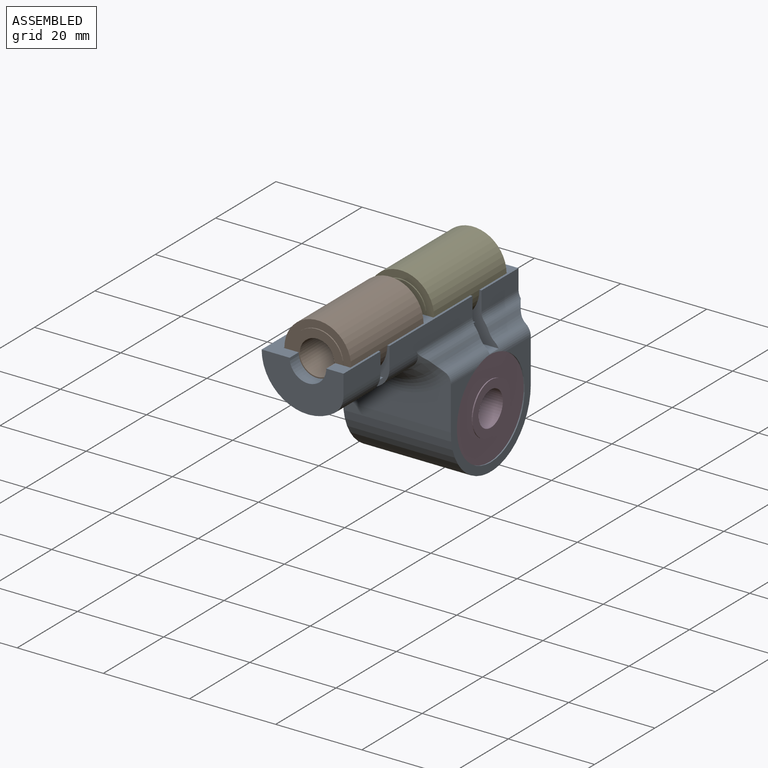
[diagram: assembled view]
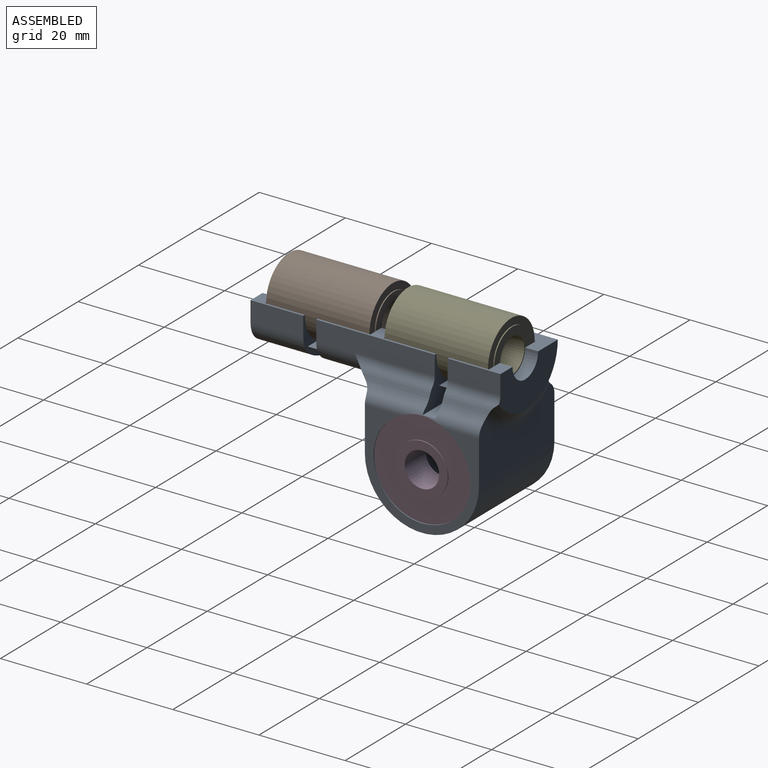
[diagram: assembled view, second angle]
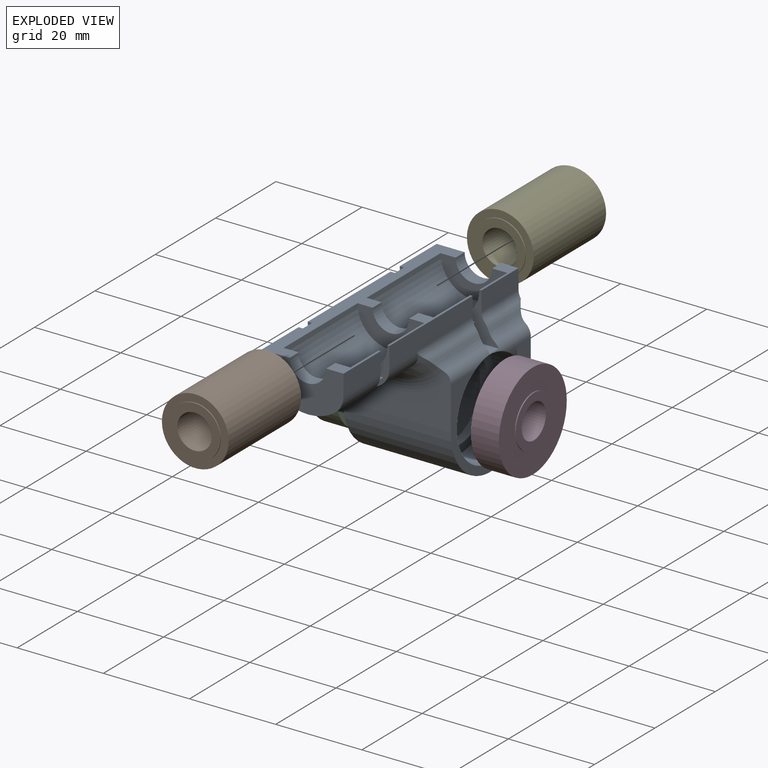
[diagram: exploded view]
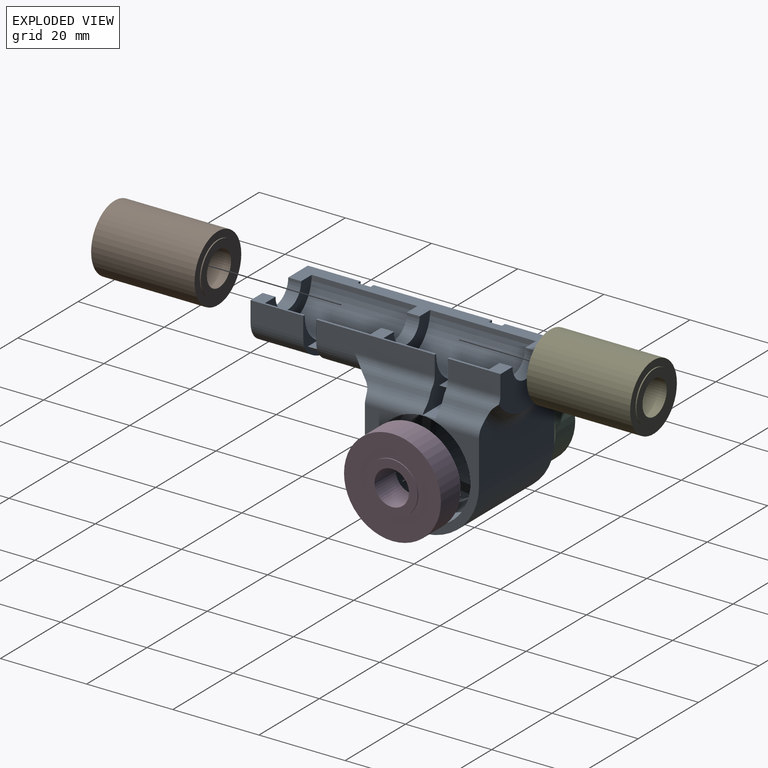
[diagram: exploded view, second angle]
ASSEMBLY  parts=5 mates=4
PART A: 60 faces, bbox 33.6x61x35.8 mm
  f0: cylinder r=9.75mm len=16.54mm, axis (0,1,0), area 68.5mm2, adj f5,f13,f28,f53
  f1: plane 19x10.75mm, normal (0,-1,0), area 140.7mm2, adj f14,f15,f27,f28,f52,f57
  f2: plane 19.52x10.75mm, normal (0,1,0), area 141.8mm2, adj f6,f23,f24,f28,f42,f49,f55
  f3: cylinder r=9.75mm len=16.54mm, axis (0,1,0), area 68.5mm2, adj f4,f25,f28,f50
  f4: plane 24.45x11.15mm, normal (0,1,0), area 84.8mm2, adj f3,f7,f9,f21,f26,f28,f31,f45
  f5: plane 19x10.75mm, normal (0,-1,0), area 36mm2, adj f0,f7,f17,f26,f28,f51,f53,f54
  f6: plane 12.25x4mm, normal (0,0,1), area 16.6mm2, adj f2,f21,f22,f23,f25,f49
  f7: plane 27.5x4mm, normal (0,0,1), area 24.3mm2, adj f4,f5,f17,f18,f19,f20,f21,f51
  f8: torus R=14.82mm, axis (0,1,0), area 90.2mm2, adj f10,f30,f42,f46,f59
  f9: cylinder r=5mm len=15.39mm, axis (0,1,0), area 38.4mm2, adj f4,f43,f44,f47,f58
  f10: cylinder r=5mm len=10.77mm, axis (0,1,0), area 27.9mm2, adj f8,f25,f30,f47,f59
  f11: cylinder r=9.25mm len=18.5mm, axis (-1,0,0), area 116.2mm2, adj f37,f39
  f12: cylinder r=11.25mm len=22.5mm, axis (-1,0,0), area 493.5mm2, adj f34,f37,f48
  f13: plane 19x10.75mm, normal (0,1,0), area 36mm2, adj f0,f14,f17,f27,f28,f52,f53,f57
  f14: cylinder r=10.75mm len=16.83mm, axis (0,1,0), area 286mm2, adj f1,f13,f28,f57
  f15: cylinder r=4.25mm len=8.5mm, axis (0,1,0), area 40.1mm2, adj f1,f16,f27,f28
  f16: plane 15.5x7.75mm, normal (0,1,0), area 66mm2, adj f15,f17,f27,f28
  f17: cylinder r=7.75mm len=24.5mm, axis (0,1,0), area 570.3mm2, adj f5,f7,f13,f16,f18,f27,f28,f53
  f18: plane 15.5x7.75mm, normal (0,-1,0), area 66mm2, adj f7,f17,f19,f28
  f19: cylinder r=4.25mm len=8.5mm, axis (0,1,0), area 40.1mm2, adj f7,f18,f20,f28
  f20: plane 15.5x7.75mm, normal (0,1,0), area 66mm2, adj f7,f19,f21,f28
  f21: cylinder r=7.75mm len=24.5mm, axis (0,1,0), area 570.3mm2, adj f4,f6,f7,f20,f22,f25,f28,f50
  f22: plane 15.5x7.75mm, normal (0,-1,0), area 66mm2, adj f6,f21,f23,f28
  f23: cylinder r=4.25mm len=8.5mm, axis (0,1,0), area 40.1mm2, adj f2,f6,f22,f28
  f24: cylinder r=10.75mm len=12.25mm, axis (0,1,0), area 52.9mm2, adj f2,f25,f28,f46
  f25: plane 24.45x11.15mm, normal (0,-1,0), area 84.8mm2, adj f3,f6,f10,f21,f24,f28,f31,f46
  f26: cylinder r=10.75mm len=27.5mm, axis (0,1,0), area 313.8mm2, adj f4,f5,f28,f43,f45,f56
  f27: plane 12.25x4mm, normal (0,0,1), area 16.6mm2, adj f1,f13,f15,f16,f17,f52
  f28: plane 58x6.5mm, normal (0,0,1), area 199.5mm2, adj f0,f1,f2,f3,f4,f5,f13,f14
  f29: plane 25x11.07mm, normal (0,-1,0), area 184.6mm2, adj f33,f34,f41,f44,f47,f48
  f30: plane 25x12.68mm, normal (0,1,0), area 237.8mm2, adj f8,f10,f33,f34,f41,f46,f47,f48
  f31: plane 24.45x3mm, normal (0,0,1), area 73.3mm2, adj f4,f25,f47,f48
  f32: cylinder r=11.25mm len=22.5mm, axis (-1,0,0), area 493.5mm2, adj f33,f36,f47
  f33: plane 26.5x23.34mm, normal (1,0,0), area 153.4mm2, adj f29,f30,f32,f41,f47
  f34: plane 26.5x23.34mm, normal (-1,0,0), area 153.4mm2, adj f12,f29,f30,f41,f48
  f35: cylinder r=9.25mm len=18.5mm, axis (-1,0,0), area 116.2mm2, adj f36,f40
  f36: plane 22.5x22.5mm, normal (1,0,0), area 128.8mm2, adj f32,f35
  f37: plane 22.5x22.5mm, normal (-1,0,0), area 128.8mm2, adj f11,f12
  f38: cylinder r=11.25mm len=22.5mm, axis (1,0,0), area 494.8mm2, adj f39,f40
  f39: plane 22.5x22.5mm, normal (1,0,0), area 128.8mm2, adj f11,f38
  f40: plane 22.5x22.5mm, normal (-1,0,0), area 128.8mm2, adj f35,f38
  f41: cylinder r=13.25mm len=26.5mm, axis (1,0,0), area 1040.7mm2, adj f29,f30,f33,f34
  f42: cone r=12.75mm half-angle=45deg, axis (0,-1,0), area 16.7mm2, adj f2,f8,f46,f55,f59
  f43: cone r=10.75mm half-angle=45deg, axis (0,1,0), area 81.5mm2, adj f9,f26,f44,f45,f54,f56,f58
  f44: torus R=16.82mm, axis (0,1,0), area 99.4mm2, adj f9,f29,f43,f45,f47,f48
  f45: cylinder r=5mm len=17.25mm, axis (0,1,0), area 101.6mm2, adj f4,f26,f43,f44,f48
  f46: cylinder r=5mm len=12.25mm, axis (0,1,0), area 72.3mm2, adj f8,f24,f25,f30,f42,f48
  f47: cylinder r=3mm len=26.78mm, axis (0,1,0), area 59.3mm2, adj f4,f9,f10,f25,f29,f30,f31,f32
  f48: cylinder r=3mm len=26.78mm, axis (0,1,0), area 59.3mm2, adj f4,f12,f25,f29,f30,f31,f34,f44
  f49: plane 12.25x4.52mm, normal (1,0,0), area 55.3mm2, adj f2,f6,f25,f55
  f50: plane 3.46x3mm, normal (0,0,1), area 10.4mm2, adj f3,f4,f21,f25
  f51: plane 27.5x4.52mm, normal (1,0,0), area 124.2mm2, adj f4,f5,f7,f54
  f52: plane 12.25x4.74mm, normal (1,0,0), area 58.1mm2, adj f1,f13,f27,f57
  f53: plane 3.46x3mm, normal (0,0,1), area 10.4mm2, adj f0,f5,f13,f17
  f54: cylinder r=3mm len=27.5mm, axis (0,1,0), area 38.3mm2, adj f4,f5,f43,f51,f56,f58
  f55: cylinder r=3mm len=12.25mm, axis (0,1,0), area 25.7mm2, adj f2,f25,f42,f49,f59
  f56: cylinder r=5mm len=10.25mm, axis (0,1,0), area 48.9mm2, adj f5,f26,f43,f54
  f57: cylinder r=5mm len=12.25mm, axis (0,1,0), area 59.4mm2, adj f1,f13,f14,f52
  f58: cylinder r=5mm len=16.96mm, axis (0,1,0), area 27.6mm2, adj f4,f9,f43,f54
  f59: cylinder r=5mm len=11.96mm, axis (0,1,0), area 19.2mm2, adj f8,f10,f25,f42,f55
PART B: 8 faces, bbox 15.5x15.5x24.5 mm
  f0: cylinder r=6mm len=12mm, axis (0,0,-1), area 9.4mm2, adj f4,f7
  f1: cylinder r=4mm len=24.5mm, axis (0,0,-1), area 615.8mm2, adj f3,f4
  f2: cylinder r=6mm len=12mm, axis (0,0,-1), area 9.4mm2, adj f3,f6
  f3: plane 12x12mm, normal (0,0,1), area 62.8mm2, adj f1,f2
  f4: plane 12x12mm, normal (0,0,-1), area 62.8mm2, adj f0,f1
  f5: cylinder r=7.75mm len=24mm, axis (0,0,-1), area 1168.7mm2, adj f6,f7
  f6: plane 15.5x15.5mm, normal (0,0,1), area 75.6mm2, adj f2,f5
  f7: plane 15.5x15.5mm, normal (0,0,-1), area 75.6mm2, adj f0,f5
PART C: 8 faces, bbox 22.5x22.5x7 mm
  f0: cylinder r=6mm len=12mm, axis (0,0,-1), area 9.4mm2, adj f4,f7
  f1: cylinder r=4mm len=8mm, axis (0,0,-1), area 175.9mm2, adj f3,f4
  f2: cylinder r=6mm len=12mm, axis (0,0,-1), area 9.4mm2, adj f3,f6
  f3: plane 12x12mm, normal (0,0,1), area 62.8mm2, adj f1,f2
  f4: plane 12x12mm, normal (0,0,-1), area 62.8mm2, adj f0,f1
  f5: cylinder r=11.25mm len=22.5mm, axis (0,0,-1), area 459.5mm2, adj f6,f7
  f6: plane 22.5x22.5mm, normal (0,0,1), area 284.5mm2, adj f2,f5
  f7: plane 22.5x22.5mm, normal (0,0,-1), area 284.5mm2, adj f0,f5
PART D: same geometry as C
PART E: same geometry as B
PLACE A t=(-2.81,-5.41,-10.91)mm
PLACE B rot(axis=(-1,0,0),90deg) t=(-2.81,-32.91,-10.91)mm
PLACE C rot(axis=(0,-1,0),90deg) t=(-11.81,-5.41,-33.41)mm
PLACE D rot(axis=(0,1,0),90deg) t=(6.19,-5.41,-33.41)mm
PLACE E rot(axis=(-1,0,0),90deg) t=(-2.81,-5.41,-10.91)mm
MATE fastened E.f0 <-> A.f0  axis (0,1,0) through (-2.81,6.84,-10.91)mm
MATE fastened C.f0 <-> A.f11  axis (1,0,0) through (-8.31,-5.41,-33.41)mm
MATE fastened D.f0 <-> A.f11  axis (-1,0,0) through (2.69,-5.41,-33.41)mm
MATE fastened B.f0 <-> A.f0  axis (0,-1,0) through (-2.81,-45.16,-10.91)mm
